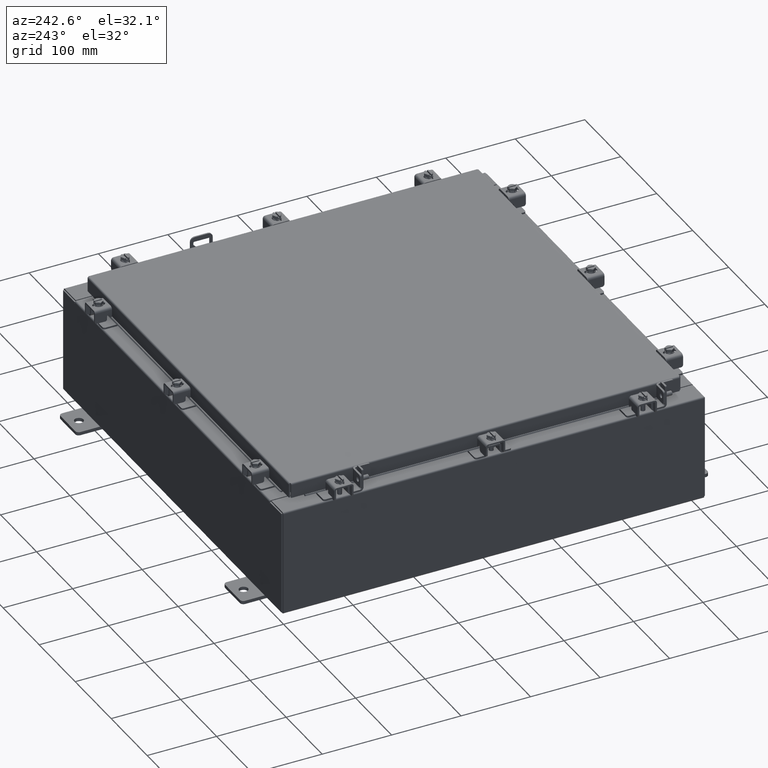
[diagram: clean part render]
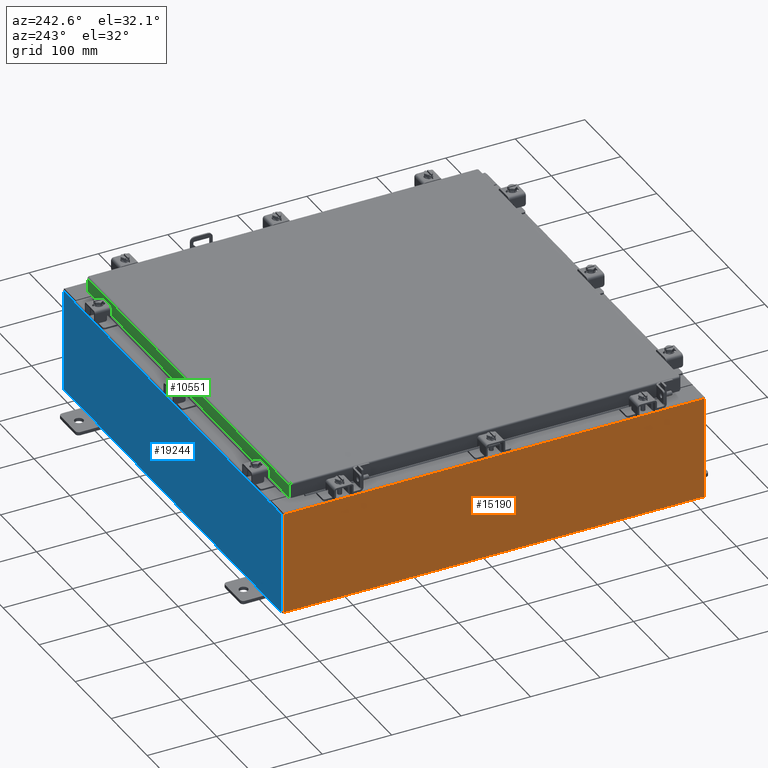
[diagram: same view with three faces highlighted in distinct colors, each labeled with its STEP entity id]
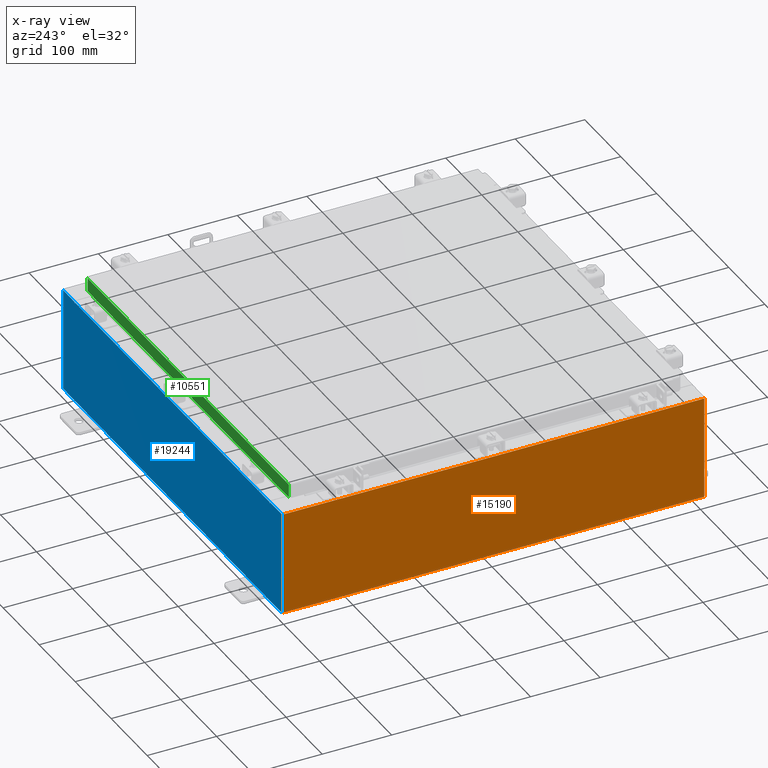
[diagram: x-ray of the same camera — body ghosted, the three highlighted faces saturated]
A machine part, auxiliary view with three faces highlighted in distinct colors.
The next image is the same camera in x-ray (body ghosted, the three faces saturated) — at least one of them is partly hidden behind the body in this view.
Their STEP definitions:

[orange] entity #15190 — the highlighted planar face has unit normal (1, 0, 0).
#1200 = CARTESIAN_POINT ( 'NONE',  ( -12.00000000000000400, -11.92530000000000000, 0.01299999999999986400 ) ) ;
#1815 = DIRECTION ( 'NONE',  ( 0.0000000000000000000, 1.000000000000000000, 0.0000000000000000000 ) ) ;
#1821 = PLANE ( 'NONE',  #5300 ) ;
#3598 = DIRECTION ( 'NONE',  ( 1.000000000000000000, 0.0000000000000000000, 3.319545939341922800E-015 ) ) ;
#4168 = EDGE_CURVE ( 'NONE', #6951, #14979, #13753, .T. ) ;
#4455 = EDGE_CURVE ( 'NONE', #12723, #14979, #9383, .T. ) ;
#4557 = EDGE_LOOP ( 'NONE', ( #5133, #7534, #7242, #12067 ) ) ;
#5133 = ORIENTED_EDGE ( 'NONE', *, *, #10542, .T. ) ;
#5300 = AXIS2_PLACEMENT_3D ( 'NONE', #12293, #3598, #15776 ) ;
#6123 = VECTOR ( 'NONE', #16495, 39.37007874015748100 ) ;
#6687 = LINE ( 'NONE', #21654, #6123 ) ;
#6951 = VERTEX_POINT ( 'NONE', #13816 ) ;
#7242 = ORIENTED_EDGE ( 'NONE', *, *, #4455, .F. ) ;
#7534 = ORIENTED_EDGE ( 'NONE', *, *, #4168, .T. ) ;
#7573 = VERTEX_POINT ( 'NONE', #17281 ) ;
#9107 = VECTOR ( 'NONE', #18573, 39.37007874015748100 ) ;
#9383 = LINE ( 'NONE', #15297, #22141 ) ;
#10542 = EDGE_CURVE ( 'NONE', #7573, #6951, #14961, .T. ) ;
#11048 = FACE_OUTER_BOUND ( 'NONE', #4557, .T. ) ;
#12067 = ORIENTED_EDGE ( 'NONE', *, *, #21856, .T. ) ;
#12293 = CARTESIAN_POINT ( 'NONE',  ( -12.00000000000000400, 0.0000000000000000000, -4.009536492811465500E-014 ) ) ;
#12723 = VERTEX_POINT ( 'NONE', #1200 ) ;
#13753 = LINE ( 'NONE', #18651, #9107 ) ;
#13816 = CARTESIAN_POINT ( 'NONE',  ( -12.00000000000002300, 11.92529999999999800, 5.837599999999999200 ) ) ;
#14961 = LINE ( 'NONE', #15769, #19054 ) ;
#14979 = VERTEX_POINT ( 'NONE', #15088 ) ;
#15088 = CARTESIAN_POINT ( 'NONE',  ( -12.00000000000000400, 11.92529999999999800, 0.01299999999999985900 ) ) ;
#15190 = ADVANCED_FACE ( 'NONE', ( #11048 ), #1821, .F. ) ;
#15297 = CARTESIAN_POINT ( 'NONE',  ( -12.00000000000000400, 11.92529999999999800, 0.01299999999999986400 ) ) ;
#15602 = DIRECTION ( 'NONE',  ( -0.0000000000000000000, 1.000000000000000000, -0.0000000000000000000 ) ) ;
#15769 = CARTESIAN_POINT ( 'NONE',  ( -12.00000000000002500, -11.92530000000000400, 5.837599999999999200 ) ) ;
#15776 = DIRECTION ( 'NONE',  ( 3.319545939341922800E-015, 0.0000000000000000000, -1.000000000000000000 ) ) ;
#16495 = DIRECTION ( 'NONE',  ( -3.319545939341922800E-015, 0.0000000000000000000, 1.000000000000000000 ) ) ;
#17281 = CARTESIAN_POINT ( 'NONE',  ( -12.00000000000002500, -11.92530000000000000, 5.837599999999999200 ) ) ;
#18573 = DIRECTION ( 'NONE',  ( 3.319545939341922800E-015, 0.0000000000000000000, -1.000000000000000000 ) ) ;
#18651 = CARTESIAN_POINT ( 'NONE',  ( -12.00000000000000400, 11.92529999999999800, -4.009536492811465500E-014 ) ) ;
#19054 = VECTOR ( 'NONE', #1815, 39.37007874015748100 ) ;
#21654 = CARTESIAN_POINT ( 'NONE',  ( -12.00000000000000400, -11.92530000000000400, -4.009536492811465500E-014 ) ) ;
#21856 = EDGE_CURVE ( 'NONE', #12723, #7573, #6687, .T. ) ;
#22141 = VECTOR ( 'NONE', #15602, 39.37007874015748100 ) ;

[blue] entity #19244 — the highlighted planar face has unit normal (0, -1, 0).
#167 = CARTESIAN_POINT ( 'NONE',  ( 10.67454999999987700, -0.0000000000000000000, -4.633366117301834200E-013 ) ) ;
#327 = VECTOR ( 'NONE', #15214, 39.37007874015748100 ) ;
#341 = LINE ( 'NONE', #4488, #19450 ) ;
#573 = VECTOR ( 'NONE', #16828, 39.37007874015748100 ) ;
#834 = CARTESIAN_POINT ( 'NONE',  ( -10.63720000000000400, -0.0000000000000000000, 0.0000000000000000000 ) ) ;
#1001 = DIRECTION ( 'NONE',  ( -0.0000000000000000000, -0.0000000000000000000, 1.000000000000000000 ) ) ;
#1096 = CARTESIAN_POINT ( 'NONE',  ( 10.67455000000000200, 0.0000000000000000000, 2.874950000000000600 ) ) ;
#1115 = EDGE_CURVE ( 'NONE', #21729, #10946, #341, .T. ) ;
#1216 = CIRCLE ( 'NONE', #7054, 0.01867499999999949400 ) ;
#1241 = CARTESIAN_POINT ( 'NONE',  ( -10.67455000000000200, -0.0000000000000000000, 0.0000000000000000000 ) ) ;
#1398 = EDGE_CURVE ( 'NONE', #14120, #4606, #1723, .T. ) ;
#1723 = LINE ( 'NONE', #13685, #19166 ) ;
#1752 = CARTESIAN_POINT ( 'NONE',  ( -10.63720000000000400, 1.024442997624098700E-016, 2.912300000000000600 ) ) ;
#1809 = VECTOR ( 'NONE', #11995, 39.37007874015748100 ) ;
#1970 = EDGE_CURVE ( 'NONE', #16915, #14120, #14508, .T. ) ;
#2275 = EDGE_CURVE ( 'NONE', #4606, #21729, #6420, .T. ) ;
#2440 = ORIENTED_EDGE ( 'NONE', *, *, #1970, .T. ) ;
#2456 = CARTESIAN_POINT ( 'NONE',  ( -10.67455000000000200, 0.0000000000000000000, 2.925300000000000500 ) ) ;
#2764 = DIRECTION ( 'NONE',  ( 0.0000000000000000000, 0.0000000000000000000, -1.000000000000000000 ) ) ;
#3191 = CIRCLE ( 'NONE', #7190, 0.01867499999999949400 ) ;
#3672 = CARTESIAN_POINT ( 'NONE',  ( 0.0000000000000000000, 0.0000000000000000000, 0.0000000000000000000 ) ) ;
#3769 = ORIENTED_EDGE ( 'NONE', *, *, #5349, .F. ) ;
#3826 = VERTEX_POINT ( 'NONE', #1752 ) ;
#3976 = DIRECTION ( 'NONE',  ( 0.0000000000000000000, 0.0000000000000000000, 1.000000000000000000 ) ) ;
#4032 = ORIENTED_EDGE ( 'NONE', *, *, #1115, .T. ) ;
#4186 = LINE ( 'NONE', #5713, #22145 ) ;
#4269 = VERTEX_POINT ( 'NONE', #1096 ) ;
#4369 = EDGE_CURVE ( 'NONE', #3826, #9249, #15081, .T. ) ;
#4488 = CARTESIAN_POINT ( 'NONE',  ( -11.92530000000000000, 0.0000000000000000000, 2.925300000000000500 ) ) ;
#4606 = VERTEX_POINT ( 'NONE', #17157 ) ;
#4898 = CARTESIAN_POINT ( 'NONE',  ( 10.67455000000000200, 0.0000000000000000000, 2.925300000000000500 ) ) ;
#4934 = EDGE_CURVE ( 'NONE', #16915, #4269, #15059, .T. ) ;
#5011 = CARTESIAN_POINT ( 'NONE',  ( 11.92530000000000000, 0.0000000000000000000, 2.925300000000000500 ) ) ;
#5035 = ORIENTED_EDGE ( 'NONE', *, *, #4369, .F. ) ;
#5291 = VECTOR ( 'NONE', #2764, 39.37007874015748100 ) ;
#5349 = EDGE_CURVE ( 'NONE', #12188, #9032, #4186, .T. ) ;
#5357 = DIRECTION ( 'NONE',  ( 0.0000000000000000000, 0.0000000000000000000, -1.000000000000000000 ) ) ;
#5497 = DIRECTION ( 'NONE',  ( 0.0000000000000000000, -0.0000000000000000000, -1.000000000000000000 ) ) ;
#5713 = CARTESIAN_POINT ( 'NONE',  ( 10.63720000000000400, 0.0000000000000000000, 0.0000000000000000000 ) ) ;
#6186 = AXIS2_PLACEMENT_3D ( 'NONE', #3672, #15933, #5497 ) ;
#6225 = DIRECTION ( 'NONE',  ( 1.000000000000000000, 0.0000000000000000000, 0.0000000000000000000 ) ) ;
#6420 = LINE ( 'NONE', #12975, #1809 ) ;
#6509 = LINE ( 'NONE', #14254, #10671 ) ;
#6701 = CARTESIAN_POINT ( 'NONE',  ( 10.65587500000000200, 0.0000000000000000000, 2.874950000000000600 ) ) ;
#7054 = AXIS2_PLACEMENT_3D ( 'NONE', #17963, #7508, #19701 ) ;
#7077 = VECTOR ( 'NONE', #6225, 39.37007874015748100 ) ;
#7190 = AXIS2_PLACEMENT_3D ( 'NONE', #6701, #18907, #8479 ) ;
#7508 = DIRECTION ( 'NONE',  ( -0.0000000000000000000, 1.000000000000000000, -0.0000000000000000000 ) ) ;
#8353 = CARTESIAN_POINT ( 'NONE',  ( -11.92530000000000000, 0.0000000000000000000, 2.925300000000000500 ) ) ;
#8479 = DIRECTION ( 'NONE',  ( 0.0000000000000000000, 0.0000000000000000000, -1.000000000000000000 ) ) ;
#9007 = EDGE_LOOP ( 'NONE', ( #9044, #19242, #5035, #15549, #3769, #20169, #19267, #2440, #19455, #10319, #4032, #15179 ) ) ;
#9032 = VERTEX_POINT ( 'NONE', #11894 ) ;
#9044 = ORIENTED_EDGE ( 'NONE', *, *, #15634, .F. ) ;
#9249 = VERTEX_POINT ( 'NONE', #14071 ) ;
#10258 = EDGE_CURVE ( 'NONE', #3826, #9032, #12836, .T. ) ;
#10319 = ORIENTED_EDGE ( 'NONE', *, *, #2275, .T. ) ;
#10671 = VECTOR ( 'NONE', #16079, 39.37007874015748100 ) ;
#10728 = PLANE ( 'NONE',  #6186 ) ;
#10946 = VERTEX_POINT ( 'NONE', #8353 ) ;
#11894 = CARTESIAN_POINT ( 'NONE',  ( 10.63720000000000400, 0.0000000000000000000, 2.912300000000000600 ) ) ;
#11995 = DIRECTION ( 'NONE',  ( -1.000000000000000000, -0.0000000000000000000, -0.0000000000000000000 ) ) ;
#12188 = VERTEX_POINT ( 'NONE', #17091 ) ;
#12810 = EDGE_CURVE ( 'NONE', #4269, #12188, #3191, .T. ) ;
#12836 = LINE ( 'NONE', #13203, #7077 ) ;
#12975 = CARTESIAN_POINT ( 'NONE',  ( -11.92530000000000000, 0.0000000000000000000, -2.925299999999999600 ) ) ;
#13203 = CARTESIAN_POINT ( 'NONE',  ( -10.63720000000000400, 1.024442997624098700E-016, 2.912300000000000600 ) ) ;
#13685 = CARTESIAN_POINT ( 'NONE',  ( 11.92530000000000000, 0.0000000000000000000, 2.925300000000000500 ) ) ;
#13739 = EDGE_CURVE ( 'NONE', #9249, #21771, #1216, .T. ) ;
#14071 = CARTESIAN_POINT ( 'NONE',  ( -10.63720000000000400, -0.0000000000000000000, 2.874950000000000600 ) ) ;
#14120 = VERTEX_POINT ( 'NONE', #5011 ) ;
#14254 = CARTESIAN_POINT ( 'NONE',  ( -11.92530000000000000, 0.0000000000000000000, 2.925300000000000500 ) ) ;
#14508 = LINE ( 'NONE', #18671, #573 ) ;
#15059 = LINE ( 'NONE', #167, #19689 ) ;
#15081 = LINE ( 'NONE', #834, #5291 ) ;
#15179 = ORIENTED_EDGE ( 'NONE', *, *, #19356, .T. ) ;
#15214 = DIRECTION ( 'NONE',  ( 0.0000000000000000000, 0.0000000000000000000, 1.000000000000000000 ) ) ;
#15549 = ORIENTED_EDGE ( 'NONE', *, *, #10258, .T. ) ;
#15634 = EDGE_CURVE ( 'NONE', #21771, #18834, #22414, .T. ) ;
#15933 = DIRECTION ( 'NONE',  ( 0.0000000000000000000, -1.000000000000000000, 0.0000000000000000000 ) ) ;
#16079 = DIRECTION ( 'NONE',  ( 1.000000000000000000, 0.0000000000000000000, 0.0000000000000000000 ) ) ;
#16339 = FACE_OUTER_BOUND ( 'NONE', #9007, .T. ) ;
#16828 = DIRECTION ( 'NONE',  ( 1.000000000000000000, 0.0000000000000000000, 0.0000000000000000000 ) ) ;
#16915 = VERTEX_POINT ( 'NONE', #4898 ) ;
#17091 = CARTESIAN_POINT ( 'NONE',  ( 10.63720000000000400, 0.0000000000000000000, 2.874950000000000600 ) ) ;
#17157 = CARTESIAN_POINT ( 'NONE',  ( 11.92530000000000000, 0.0000000000000000000, -2.925299999999999600 ) ) ;
#17963 = CARTESIAN_POINT ( 'NONE',  ( -10.65587500000000200, 0.0000000000000000000, 2.874950000000000600 ) ) ;
#18030 = CARTESIAN_POINT ( 'NONE',  ( -11.92530000000000000, 0.0000000000000000000, -2.925299999999999600 ) ) ;
#18671 = CARTESIAN_POINT ( 'NONE',  ( -11.92530000000000000, 0.0000000000000000000, 2.925300000000000500 ) ) ;
#18834 = VERTEX_POINT ( 'NONE', #2456 ) ;
#18907 = DIRECTION ( 'NONE',  ( -0.0000000000000000000, 1.000000000000000000, -0.0000000000000000000 ) ) ;
#19166 = VECTOR ( 'NONE', #5357, 39.37007874015748100 ) ;
#19242 = ORIENTED_EDGE ( 'NONE', *, *, #13739, .F. ) ;
#19244 = ADVANCED_FACE ( 'NONE', ( #16339 ), #10728, .F. ) ;
#19267 = ORIENTED_EDGE ( 'NONE', *, *, #4934, .F. ) ;
#19356 = EDGE_CURVE ( 'NONE', #10946, #18834, #6509, .T. ) ;
#19450 = VECTOR ( 'NONE', #1001, 39.37007874015748100 ) ;
#19455 = ORIENTED_EDGE ( 'NONE', *, *, #1398, .T. ) ;
#19689 = VECTOR ( 'NONE', #21205, 39.37007874015748100 ) ;
#19701 = DIRECTION ( 'NONE',  ( 0.0000000000000000000, 0.0000000000000000000, -1.000000000000000000 ) ) ;
#20169 = ORIENTED_EDGE ( 'NONE', *, *, #12810, .F. ) ;
#21205 = DIRECTION ( 'NONE',  ( -4.340572780400004900E-014, 0.0000000000000000000, -1.000000000000000000 ) ) ;
#21586 = CARTESIAN_POINT ( 'NONE',  ( -10.67455000000000200, 0.0000000000000000000, 2.874950000000000600 ) ) ;
#21729 = VERTEX_POINT ( 'NONE', #18030 ) ;
#21771 = VERTEX_POINT ( 'NONE', #21586 ) ;
#22145 = VECTOR ( 'NONE', #3976, 39.37007874015748100 ) ;
#22414 = LINE ( 'NONE', #1241, #327 ) ;

[green] entity #10551 — the highlighted planar face has unit normal (0, -1, -0).
#7 = CARTESIAN_POINT ( 'NONE',  ( -11.09400000000000300, 11.09399999999999900, -0.8500000000000020900 ) ) ;
#112 = DIRECTION ( 'NONE',  ( 0.0000000000000000000, 2.818880942772350300E-015, -1.000000000000000000 ) ) ;
#1005 = VERTEX_POINT ( 'NONE', #4508 ) ;
#1419 = CARTESIAN_POINT ( 'NONE',  ( -11.00515786437627100, 11.09399999999999800, -0.07470000000000015500 ) ) ;
#1589 = EDGE_CURVE ( 'NONE', #6455, #15515, #11837, .T. ) ;
#2418 = VERTEX_POINT ( 'NONE', #5620 ) ;
#2717 = CARTESIAN_POINT ( 'NONE',  ( -11.00515786437627100, 11.09399999999999800, -0.08770000000000026400 ) ) ;
#2981 = CARTESIAN_POINT ( 'NONE',  ( -10.25515786437626900, 11.09399999999999200, -0.8500000000000043100 ) ) ;
#3593 = PLANE ( 'NONE',  #8331 ) ;
#4242 = DIRECTION ( 'NONE',  ( 0.0000000000000000000, 2.818880942772350300E-015, -1.000000000000000000 ) ) ;
#4508 = CARTESIAN_POINT ( 'NONE',  ( 10.25515786437625100, 11.09399999999999200, -0.8500000000000043100 ) ) ;
#5620 = CARTESIAN_POINT ( 'NONE',  ( 11.00515786437626200, 11.09399999999999900, -0.8499999999999999800 ) ) ;
#6046 = EDGE_CURVE ( 'NONE', #6455, #2418, #15347, .T. ) ;
#6455 = VERTEX_POINT ( 'NONE', #13999 ) ;
#6755 = ORIENTED_EDGE ( 'NONE', *, *, #14030, .F. ) ;
#8269 = DIRECTION ( 'NONE',  ( 1.000000000000000000, -4.379057701015054300E-047, 1.231227687788112800E-016 ) ) ;
#8331 = AXIS2_PLACEMENT_3D ( 'NONE', #21017, #10633, #112 ) ;
#8703 = VECTOR ( 'NONE', #18885, 39.37007874015748100 ) ;
#9062 = CARTESIAN_POINT ( 'NONE',  ( -10.25515786437627200, 11.09399999999999200, -0.8500000000000043100 ) ) ;
#9259 = LINE ( 'NONE', #1419, #8703 ) ;
#9706 = LINE ( 'NONE', #18709, #14322 ) ;
#9816 = FACE_OUTER_BOUND ( 'NONE', #13733, .T. ) ;
#10396 = ORIENTED_EDGE ( 'NONE', *, *, #12250, .F. ) ;
#10551 = ADVANCED_FACE ( 'NONE', ( #9816 ), #3593, .F. ) ;
#10633 = DIRECTION ( 'NONE',  ( 3.470684265319575600E-031, -1.000000000000000000, -2.818880942772350300E-015 ) ) ;
#11837 = LINE ( 'NONE', #17610, #16428 ) ;
#12036 = ORIENTED_EDGE ( 'NONE', *, *, #19739, .F. ) ;
#12246 = DIRECTION ( 'NONE',  ( 1.000000000000000000, -4.379057701015054300E-047, 1.231227687788112800E-016 ) ) ;
#12250 = EDGE_CURVE ( 'NONE', #1005, #2418, #20659, .T. ) ;
#12261 = DIRECTION ( 'NONE',  ( -1.000000000000000000, -3.470684265319576000E-031, -9.460278716967629600E-046 ) ) ;
#12424 = VERTEX_POINT ( 'NONE', #14348 ) ;
#13676 = VERTEX_POINT ( 'NONE', #9062 ) ;
#13733 = EDGE_LOOP ( 'NONE', ( #15093, #13924, #10396, #16355, #6755, #12036 ) ) ;
#13924 = ORIENTED_EDGE ( 'NONE', *, *, #6046, .T. ) ;
#13999 = CARTESIAN_POINT ( 'NONE',  ( 11.00515786437626200, 11.09399999999999800, -0.08770000000000026400 ) ) ;
#14030 = EDGE_CURVE ( 'NONE', #12424, #13676, #9706, .T. ) ;
#14322 = VECTOR ( 'NONE', #8269, 39.37007874015748100 ) ;
#14348 = CARTESIAN_POINT ( 'NONE',  ( -11.00515786437627100, 11.09399999999999900, -0.8500000000000020900 ) ) ;
#15020 = VECTOR ( 'NONE', #15251, 39.37007874015748100 ) ;
#15093 = ORIENTED_EDGE ( 'NONE', *, *, #1589, .F. ) ;
#15251 = DIRECTION ( 'NONE',  ( 1.000000000000000000, -0.0000000000000000000, -0.0000000000000000000 ) ) ;
#15347 = LINE ( 'NONE', #18266, #19421 ) ;
#15515 = VERTEX_POINT ( 'NONE', #2717 ) ;
#16355 = ORIENTED_EDGE ( 'NONE', *, *, #16875, .F. ) ;
#16428 = VECTOR ( 'NONE', #12261, 39.37007874015748100 ) ;
#16875 = EDGE_CURVE ( 'NONE', #13676, #1005, #19656, .T. ) ;
#17610 = CARTESIAN_POINT ( 'NONE',  ( -11.09400000000000300, 11.09399999999999800, -0.08770000000000026400 ) ) ;
#18266 = CARTESIAN_POINT ( 'NONE',  ( 11.00515786437626200, 11.09399999999999800, 3.168943672650545400E-014 ) ) ;
#18709 = CARTESIAN_POINT ( 'NONE',  ( -11.09400000000000300, 11.09399999999999900, -0.8500000000000020900 ) ) ;
#18885 = DIRECTION ( 'NONE',  ( -0.0000000000000000000, 2.818880942772350300E-015, -1.000000000000000000 ) ) ;
#19421 = VECTOR ( 'NONE', #4242, 39.37007874015748100 ) ;
#19656 = LINE ( 'NONE', #2981, #15020 ) ;
#19739 = EDGE_CURVE ( 'NONE', #15515, #12424, #9259, .T. ) ;
#20659 = LINE ( 'NONE', #7, #21187 ) ;
#21017 = CARTESIAN_POINT ( 'NONE',  ( 0.0000000000000000000, 11.09399999999999800, 3.168943672650545400E-014 ) ) ;
#21187 = VECTOR ( 'NONE', #12246, 39.37007874015748100 ) ;